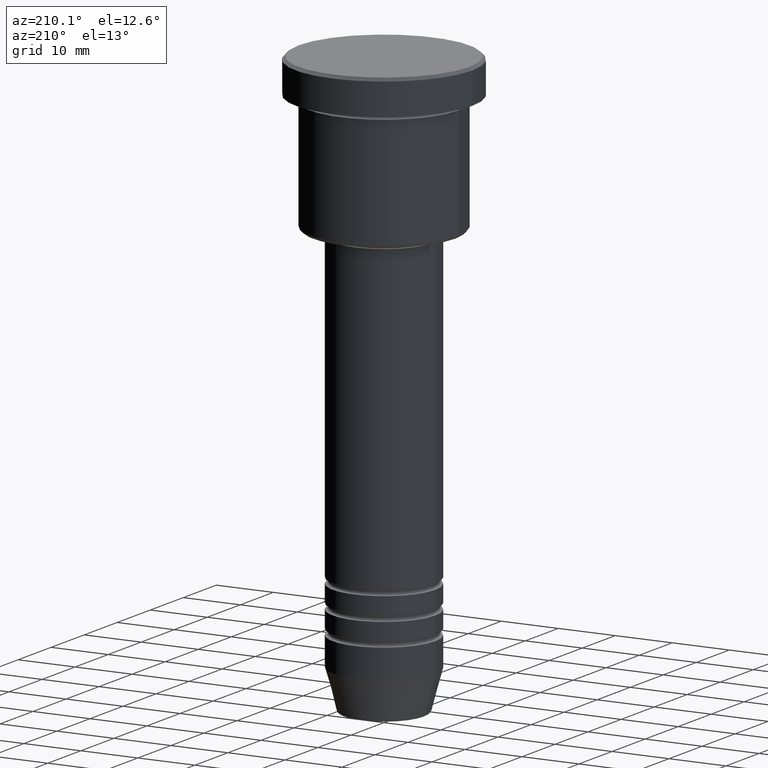
[diagram: clean part render]
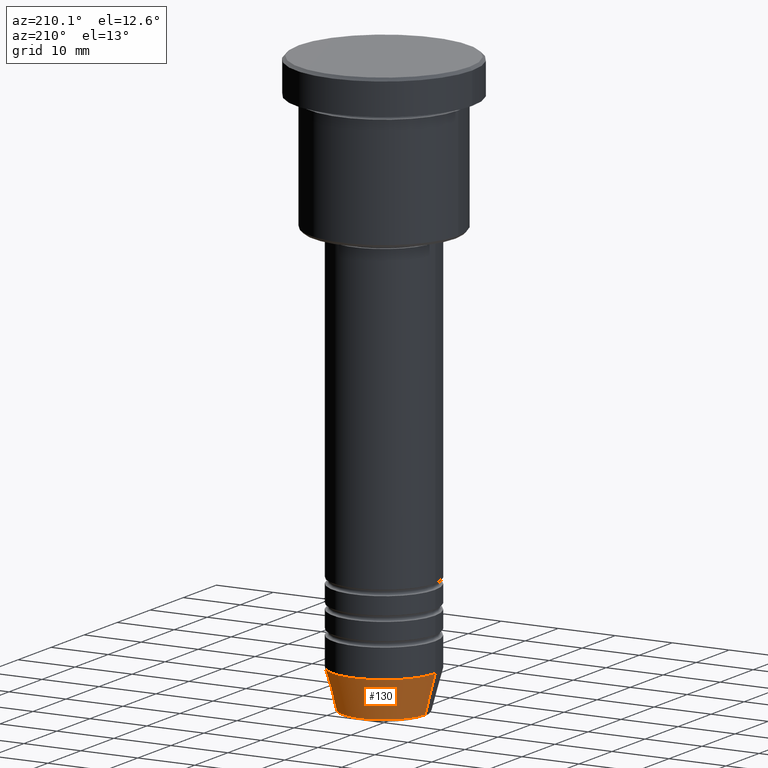
[diagram: same view with one face highlighted and labeled with its STEP entity id]
A machine part, auxiliary view. The second image highlights one B-rep face of the part: STEP entity #130.
In plain terms, the highlighted conical surface has half-angle 15 deg.
Its self-contained STEP definition (entity closure, byte-faithful):
#8 = CARTESIAN_POINT ( 'NONE',  ( 0.000000000000000000, 0.000000000000000000, -95.00000000000000000 ) ) ;
#15 = CARTESIAN_POINT ( 'NONE',  ( 0.000000000000000000, 0.000000000000000000, -95.00000000000000000 ) ) ;
#37 = DIRECTION ( 'NONE',  ( -0.2588190451025213501, 3.169619151431772337E-17, 0.9659258262890680902 ) ) ;
#58 = VERTEX_POINT ( 'NONE', #1158 ) ;
#130 = ADVANCED_FACE ( 'NONE', ( #1104 ), #325, .T. ) ;
#142 = CARTESIAN_POINT ( 'NONE',  ( -9.000000000000000000, 1.102182119232617714E-15, -95.00000000000000000 ) ) ;
#156 = ORIENTED_EDGE ( 'NONE', *, *, #655, .F. ) ;
#187 = DIRECTION ( 'NONE',  ( 1.000000000000000000, 0.000000000000000000, 0.000000000000000000 ) ) ;
#196 = EDGE_LOOP ( 'NONE', ( #809, #535, #156, #311 ) ) ;
#203 = CARTESIAN_POINT ( 'NONE',  ( 0.000000000000000000, 0.000000000000000000, -101.6294095225512706 ) ) ;
#270 = DIRECTION ( 'NONE',  ( 0.2588190451025213501, 0.000000000000000000, 0.9659258262890680902 ) ) ;
#282 = LINE ( 'NONE', #1009, #729 ) ;
#287 = EDGE_CURVE ( 'NONE', #58, #785, #1125, .T. ) ;
#311 = ORIENTED_EDGE ( 'NONE', *, *, #1168, .F. ) ;
#325 = CONICAL_SURFACE ( 'NONE', #890, 9.000000000000000000, 0.2617993877991500740 ) ;
#370 = CIRCLE ( 'NONE', #1000, 7.223655072137188604 ) ;
#465 = DIRECTION ( 'NONE',  ( 1.000000000000000000, 0.000000000000000000, 0.000000000000000000 ) ) ;
#475 = AXIS2_PLACEMENT_3D ( 'NONE', #8, #566, #1030 ) ;
#508 = CIRCLE ( 'NONE', #475, 9.000000000000000000 ) ;
#535 = ORIENTED_EDGE ( 'NONE', *, *, #287, .T. ) ;
#566 = DIRECTION ( 'NONE',  ( -0.000000000000000000, -0.000000000000000000, 1.000000000000000000 ) ) ;
#587 = VECTOR ( 'NONE', #37, 1000.000000000000000 ) ;
#634 = EDGE_CURVE ( 'NONE', #772, #58, #370, .T. ) ;
#655 = EDGE_CURVE ( 'NONE', #834, #785, #508, .T. ) ;
#729 = VECTOR ( 'NONE', #270, 1000.000000000000000 ) ;
#762 = CARTESIAN_POINT ( 'NONE',  ( 7.223655072137188604, 0.000000000000000000, -101.6294095225512706 ) ) ;
#772 = VERTEX_POINT ( 'NONE', #762 ) ;
#785 = VERTEX_POINT ( 'NONE', #1118 ) ;
#809 = ORIENTED_EDGE ( 'NONE', *, *, #634, .T. ) ;
#834 = VERTEX_POINT ( 'NONE', #942 ) ;
#890 = AXIS2_PLACEMENT_3D ( 'NONE', #15, #1172, #187 ) ;
#942 = CARTESIAN_POINT ( 'NONE',  ( 9.000000000000000000, 0.000000000000000000, -95.00000000000000000 ) ) ;
#1000 = AXIS2_PLACEMENT_3D ( 'NONE', #203, #1097, #465 ) ;
#1009 = CARTESIAN_POINT ( 'NONE',  ( 9.000000000000000000, 0.000000000000000000, -95.00000000000000000 ) ) ;
#1030 = DIRECTION ( 'NONE',  ( 1.000000000000000000, 0.000000000000000000, 0.000000000000000000 ) ) ;
#1097 = DIRECTION ( 'NONE',  ( -0.000000000000000000, -0.000000000000000000, 1.000000000000000000 ) ) ;
#1104 = FACE_OUTER_BOUND ( 'NONE', #196, .T. ) ;
#1118 = CARTESIAN_POINT ( 'NONE',  ( -9.000000000000000000, 1.102182119232617714E-15, -95.00000000000000000 ) ) ;
#1125 = LINE ( 'NONE', #142, #587 ) ;
#1158 = CARTESIAN_POINT ( 'NONE',  ( -7.223655072137189492, 9.934123627281765110E-16, -101.6294095225512706 ) ) ;
#1168 = EDGE_CURVE ( 'NONE', #772, #834, #282, .T. ) ;
#1172 = DIRECTION ( 'NONE',  ( -0.000000000000000000, -0.000000000000000000, 1.000000000000000000 ) ) ;